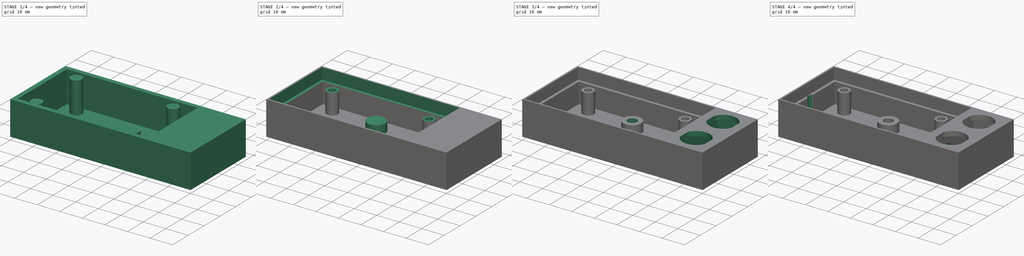
[diagram: build sequence overview — one tinted view per stage of 4, left to right]
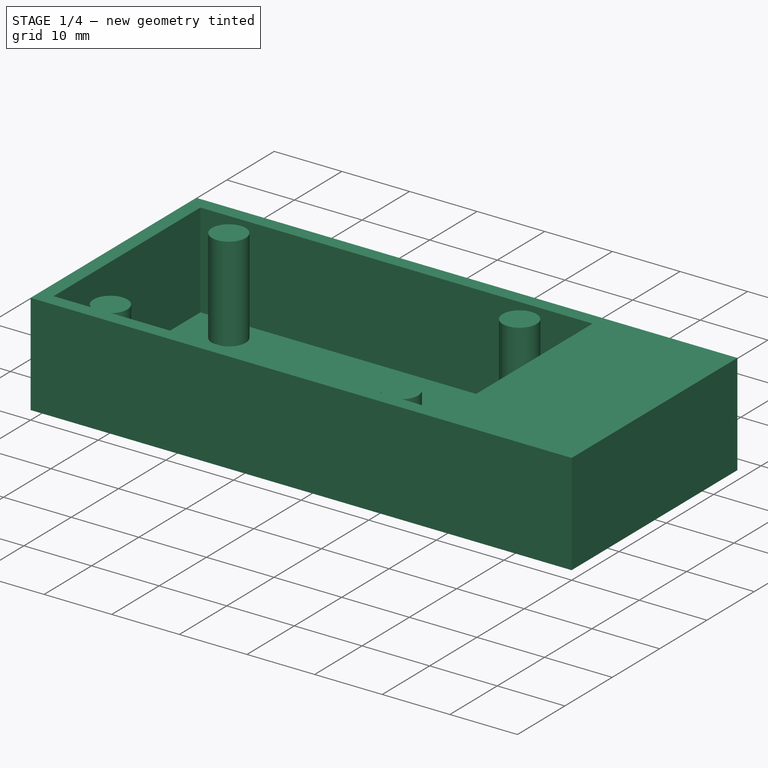
[diagram: stage 1 of 4 — iso view after this stage's code; geometry added in this stage tinted green]
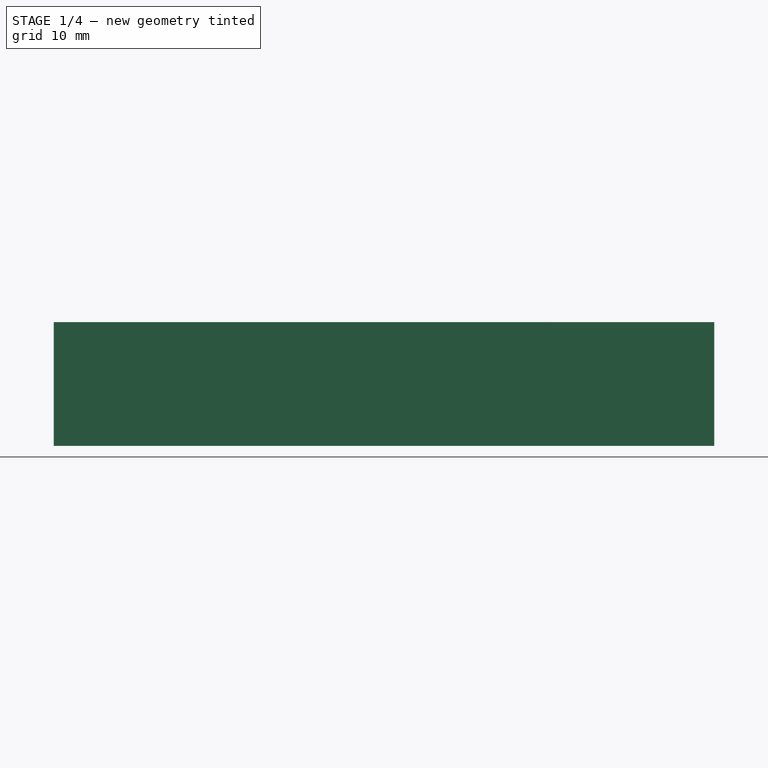
[diagram: stage 1 of 4 — front view after this stage's code; geometry added in this stage tinted green]
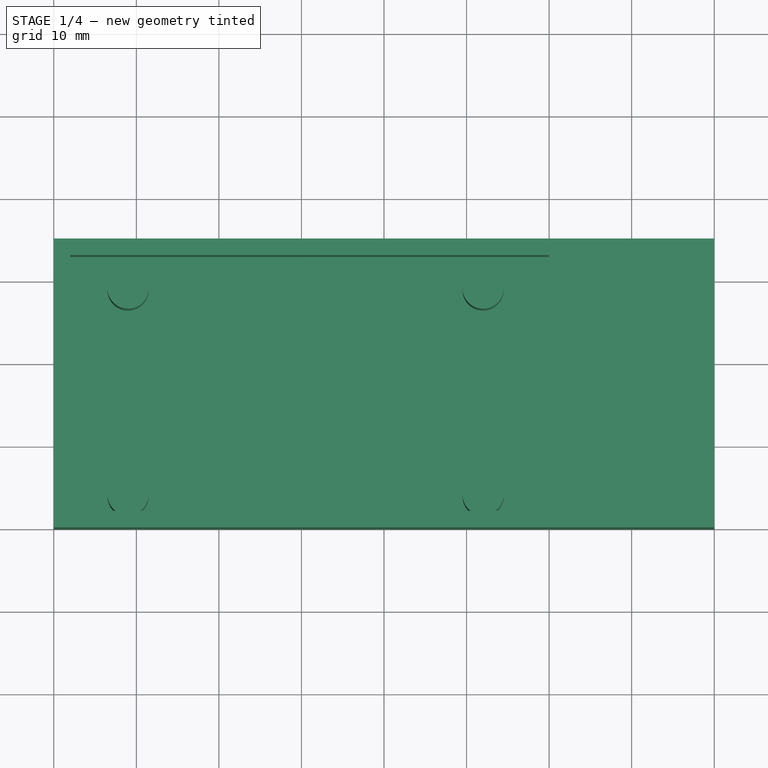
[diagram: stage 1 of 4 — top view after this stage's code; geometry added in this stage tinted green]
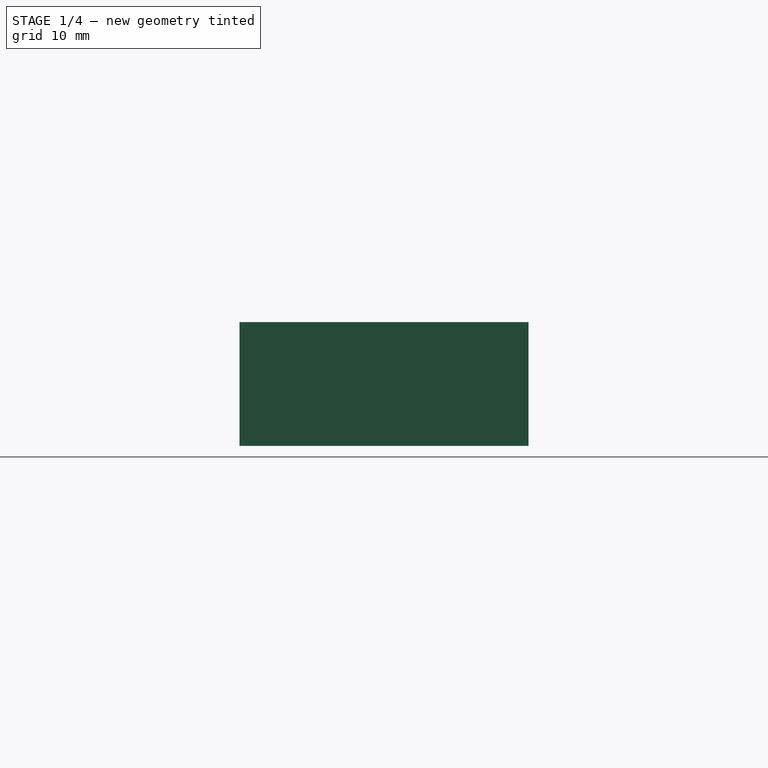
[diagram: stage 1 of 4 — right view after this stage's code; geometry added in this stage tinted green]
FCSTD DOCUMENT  (FreeCAD 0.21R33694 (Git))
Label: continuity-tester
License: All rights reserved
LicenseURL: http://en.wikipedia.org/wiki/All_rights_reserved
objects: Sketcher::SketchObject×10, PartDesign::Pocket×8, PartDesign::Pad×2, PartDesign::Body×1
note: 31 computed .brp shape members not serialized (recipe doc carries the construction recipe); baked Part::Feature solids carry a one-line shape summary decoded from their .brp

FEATURE [Sketcher::SketchObject] Sketch
  FullyConstrained = true
  MapMode = 5
  Support = -> [XY_Plane]
  sketch-geometry (4):
    g0: LineSegment StartX=0 StartY=0 StartZ=0 EndX=80 EndY=0 EndZ=0
    g1: LineSegment StartX=80 StartY=0 StartZ=0 EndX=80 EndY=35 EndZ=0
    g2: LineSegment StartX=80 StartY=35 StartZ=0 EndX=0 EndY=35 EndZ=0
    g3: LineSegment StartX=0 StartY=35 StartZ=0 EndX=0 EndY=0 EndZ=0
  constraints (11):
    c: Coincident(g0,g1)
    c: Coincident(g1,g2)
    c: Coincident(g2,g3)
    c: Coincident(g3,g0)
    c: Horizontal(g0)
    c: Horizontal(g2)
    c: Vertical(g1)
    c: Vertical(g3)
    c: Coincident(g0,g-1)
    c: DistanceY(g1,g1) = 35
    c: DistanceX(g0,g0) = 80
FEATURE [PartDesign::Pad] Pad
  Direction = (0,0,1)
  Length = 15
  Length2 = 10
  Profile = -> Sketch
  ReferenceAxis = -> Sketch [N_Axis]
  Type = 0
FEATURE [Sketcher::SketchObject] Sketch001
  ExternalGeometry = -> [Pad]
  FullyConstrained = true
  MapMode = 5
  Placement = pos=(0,0,15) rot=(0,0,1;0rad)
  Support = -> [Pad]
  sketch-geometry (21):
    g0: LineSegment StartX=2 StartY=33 StartZ=0 EndX=60 EndY=33 EndZ=0
    g1: LineSegment StartX=60 StartY=33 StartZ=0 EndX=60 EndY=2 EndZ=0
    g2: LineSegment StartX=60 StartY=2 StartZ=0 EndX=2 EndY=2 EndZ=0
    g3: LineSegment StartX=2 StartY=2 StartZ=0 EndX=2 EndY=33 EndZ=0
    g4: LineSegment StartX=9 StartY=29 StartZ=0 EndX=52 EndY=29 EndZ=0
    g5: LineSegment StartX=52 StartY=29 StartZ=0 EndX=52 EndY=4 EndZ=0
    g6: LineSegment StartX=52 StartY=4 StartZ=0 EndX=9 EndY=4 EndZ=0
    g7: LineSegment StartX=9 StartY=4 StartZ=0 EndX=9 EndY=29 EndZ=0
    g8: Circle CenterX=9 CenterY=29 CenterZ=0 NormalX=0 NormalY=0 NormalZ=1 AngleXU=0 Radius=2.5
    g9: Circle CenterX=52 CenterY=29 CenterZ=0 NormalX=0 NormalY=0 NormalZ=1 AngleXU=0 Radius=2.5
    g10: Circle CenterX=52 CenterY=4 CenterZ=0 NormalX=0 NormalY=0 NormalZ=1 AngleXU=0 Radius=2.5
    g11: Circle CenterX=9 CenterY=4 CenterZ=0 NormalX=0 NormalY=0 NormalZ=1 AngleXU=0 Radius=2.5
    g12: GeomPoint X=7.5 Y=2 Z=0
    g13: GeomPoint X=10.5 Y=2 Z=0
    g14: GeomPoint X=50.5 Y=2 Z=0
    g15: GeomPoint X=53.5 Y=2 Z=0
    g16: ArcOfCircle CenterX=9 CenterY=4 CenterZ=0 NormalX=0 NormalY=0 NormalZ=1 AngleXU=0 Radius=2.5 StartAngle=5.35589 EndAngle=10.3521
    g17: ArcOfCircle CenterX=52 CenterY=4 CenterZ=0 NormalX=0 NormalY=0 NormalZ=1 AngleXU=0 Radius=2.5 StartAngle=5.35589 EndAngle=10.3521
    g18: LineSegment StartX=2 StartY=2 StartZ=0 EndX=7.5 EndY=2 EndZ=0
    g19: LineSegment StartX=10.5 StartY=2 StartZ=0 EndX=50.5 EndY=2 EndZ=0
    g20: LineSegment StartX=53.5 StartY=2 StartZ=0 EndX=60 EndY=2 EndZ=0
  constraints (50):
    c: Coincident(g0,g1)
    c: Coincident(g1,g2)
    c: Coincident(g2,g3)
    c: Coincident(g3,g0)
    c: Horizontal(g0)
    c: Horizontal(g2)
    c: Vertical(g1)
    c: Vertical(g3)
    c: Coincident(g4,g5)
    c: Coincident(g5,g6)
    c: Coincident(g6,g7)
    c: Coincident(g7,g4)
    c: Horizontal(g4)
    c: Horizontal(g6)
    c: Vertical(g5)
    c: Vertical(g7)
    c: DistanceY(g3,g3) = 31
    c: DistanceX(g2,g2) = 58
    c: DistanceY(g-4,g2) = 2
    c: DistanceX(g-4,g2) = 2
    c: DistanceX(g6,g6) = 43
    c: DistanceY(g7,g7) = 25
    c: Coincident(g8,g4)
    c: Coincident(g9,g4)
    c: Coincident(g10,g5)
    c: Coincident(g11,g6)
    c: Equal(g11,g8)
    c: Equal(g8,g9)
    c: Equal(g9,g10)
    c: Diameter(g9) = 5
    c: DistanceX(g0,g8) = 7
    c: DistanceY(g8,g0) = 4
    c: PointOnObject(g12,g11)
    c: PointOnObject(g14,g10)
    c: PointOnObject(g13,g2)
    c: PointOnObject(g15,g2)
    c: Coincident(g16,g6)
    c: Coincident(g16,g13)
    c: Coincident(g16,g12)
    c: Coincident(g17,g5)
    c: Coincident(g17,g15)
    c: Coincident(g17,g14)
    c: PointOnObject(g16,g2)
    c: PointOnObject(g17,g2)
    c: Coincident(g18,g3)
    c: Coincident(g18,g16)
    c: Coincident(g19,g16)
    c: Coincident(g19,g17)
    c: Coincident(g20,g17)
    c: Coincident(g20,g1)
FEATURE [PartDesign::Pocket] Pocket  label="PCB bottom"
  BaseFeature = -> Pad
  Direction = (0,0,-1)
  Length = 14
  Length2 = 5
  Profile = -> Sketch001
  ReferenceAxis = -> Sketch001 [N_Axis]
  Type = 0
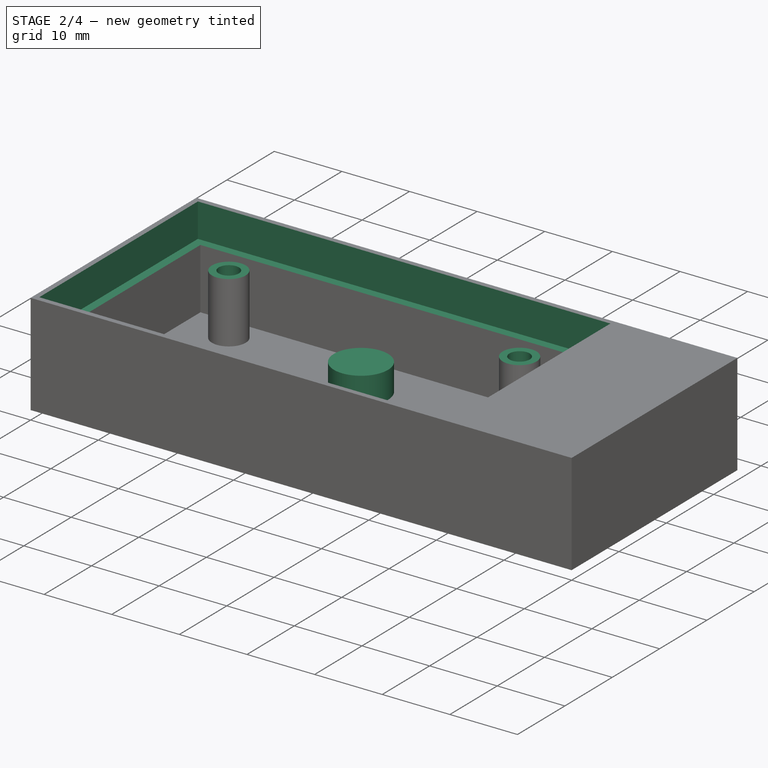
[diagram: stage 2 of 4 — iso view after this stage's code; geometry added in this stage tinted green]
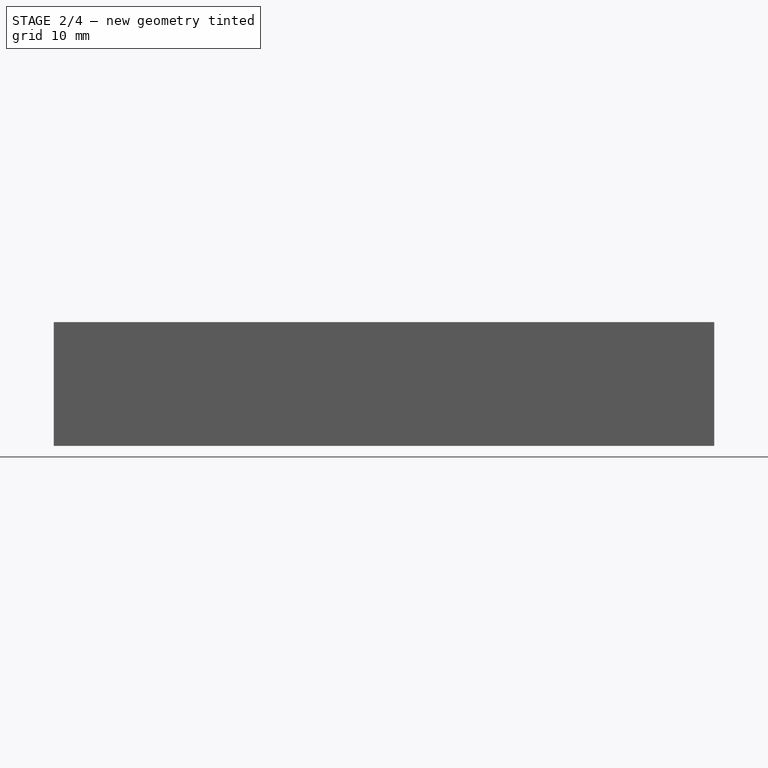
[diagram: stage 2 of 4 — front view after this stage's code; geometry added in this stage tinted green]
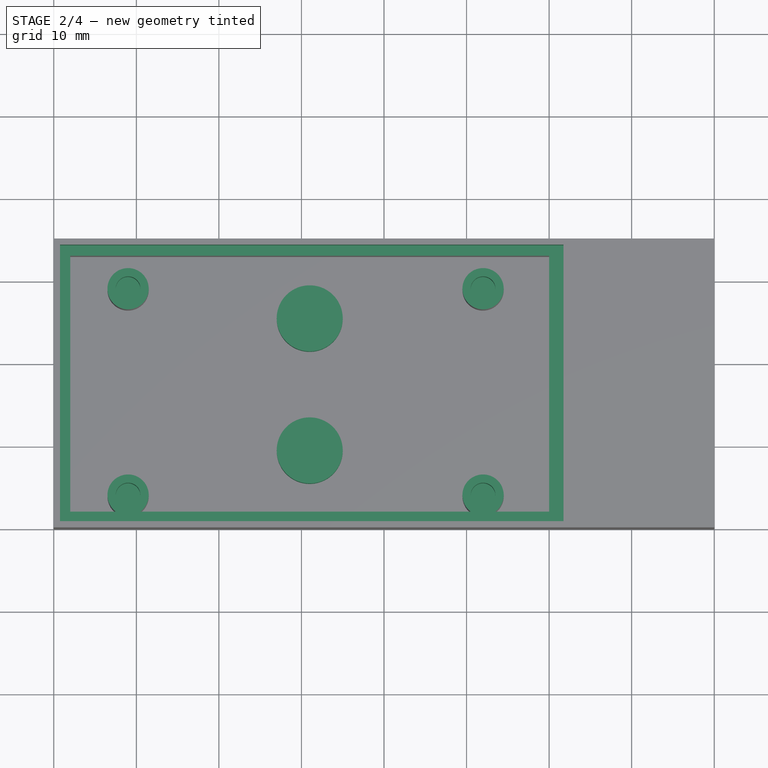
[diagram: stage 2 of 4 — top view after this stage's code; geometry added in this stage tinted green]
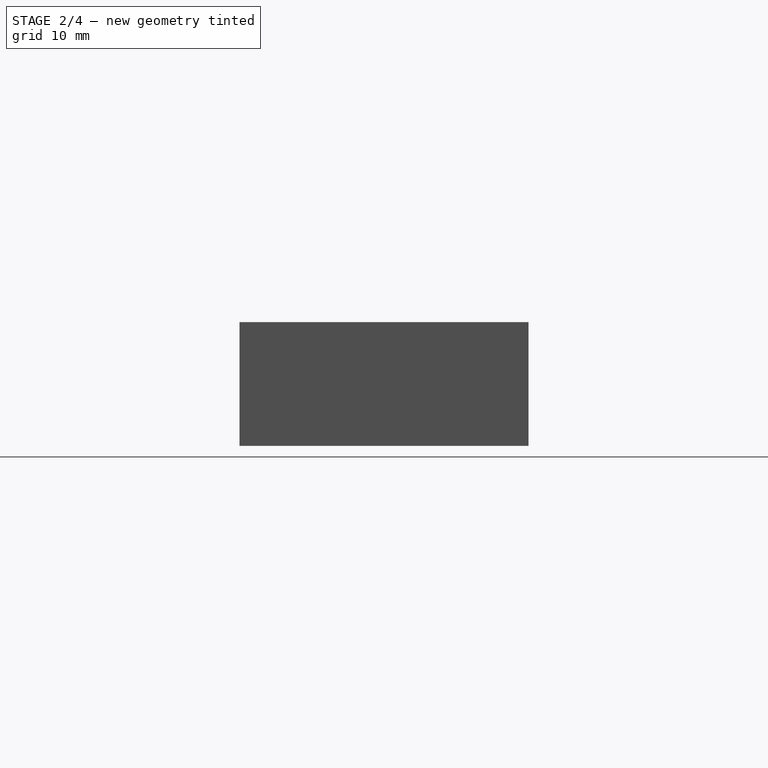
[diagram: stage 2 of 4 — right view after this stage's code; geometry added in this stage tinted green]
FEATURE [Sketcher::SketchObject] Sketch002
  ExternalGeometry = -> [Pocket]
  FullyConstrained = true
  MapMode = 5
  Placement = pos=(0,0,15) rot=(0,0,1;0rad)
  Support = -> [Pocket]
  sketch-geometry (7):
    g0: LineSegment StartX=0.75 StartY=34.25 StartZ=0 EndX=61.75 EndY=34.25 EndZ=0
    g1: LineSegment StartX=61.75 StartY=34.25 StartZ=0 EndX=61.75 EndY=0.75 EndZ=0
    g2: LineSegment StartX=61.75 StartY=0.75 StartZ=0 EndX=0.75 EndY=0.75 EndZ=0
    g3: LineSegment StartX=0.75 StartY=0.75 StartZ=0 EndX=0.75 EndY=34.25 EndZ=0
    g4: LineSegment StartX=0.75 StartY=0.75 StartZ=0 EndX=0.75 EndY=0 EndZ=0
    g5: LineSegment StartX=0.75 StartY=0.75 StartZ=0 EndX=0 EndY=0.75 EndZ=0
    g6: LineSegment StartX=0.75 StartY=34.25 StartZ=0 EndX=0.75 EndY=35 EndZ=0
  constraints (21):
    c: Coincident(g0,g1)
    c: Coincident(g1,g2)
    c: Coincident(g2,g3)
    c: Coincident(g3,g0)
    c: Horizontal(g0)
    c: Horizontal(g2)
    c: Vertical(g1)
    c: Vertical(g3)
    c: DistanceX(g2,g2) = 61
    c: DistanceY(g3,g3) = 33.5
    c: Coincident(g4,g2)
    c: PointOnObject(g4,g-1)
    c: Vertical(g4)
    c: Coincident(g5,g2)
    c: Horizontal(g5)
    c: Coincident(g6,g0)
    c: PointOnObject(g6,g-3)
    c: Vertical(g6)
    c: Equal(g6,g4)
    c: Equal(g4,g5)
    c: PointOnObject(g5,g-2)
FEATURE [PartDesign::Pocket] Pocket001  label="PCB top"
  BaseFeature = -> Pocket
  Direction = (0,0,-1)
  Length = 5
  Length2 = 5
  Profile = -> Sketch002
  ReferenceAxis = -> Sketch002 [N_Axis]
  Type = 0
FEATURE [Sketcher::SketchObject] Sketch003
  ExternalGeometry = -> [Pocket001]
  FullyConstrained = true
  MapMode = 5
  Placement = pos=(0,0,10) rot=(0,0,1;0rad)
  Support = -> [Pocket001]
  sketch-geometry (4):
    g0: Circle CenterX=9 CenterY=29 CenterZ=0 NormalX=0 NormalY=0 NormalZ=1 AngleXU=0 Radius=1.5
    g1: Circle CenterX=9 CenterY=4 CenterZ=0 NormalX=0 NormalY=0 NormalZ=1 AngleXU=0 Radius=1.5
    g2: Circle CenterX=52 CenterY=29 CenterZ=0 NormalX=0 NormalY=0 NormalZ=1 AngleXU=0 Radius=1.5
    g3: Circle CenterX=52 CenterY=4 CenterZ=0 NormalX=0 NormalY=0 NormalZ=1 AngleXU=0 Radius=1.5
  constraints (8):
    c: Coincident(g0,g-4)
    c: Coincident(g1,g-5)
    c: Coincident(g2,g-3)
    c: Coincident(g3,g-6)
    c: Equal(g1,g0)
    c: Equal(g0,g2)
    c: Equal(g2,g3)
    c: Diameter(g2) = 3
FEATURE [PartDesign::Pocket] Pocket002  label="PCB inserts"
  BaseFeature = -> Pocket001
  Direction = (0,0,-1)
  Length = 5
  Length2 = 5
  Profile = -> Sketch003
  ReferenceAxis = -> Sketch003 [N_Axis]
  Type = 0
FEATURE [Sketcher::SketchObject] Sketch004
  ExternalGeometry = -> [Pocket002]
  FullyConstrained = true
  MapMode = 5
  Placement = pos=(0,0,0) rot=(1,0,0;3.14159rad)
  Support = -> [Pocket002]
  sketch-geometry (5):
    g0: LineSegment StartX=31 StartY=-9.5 StartZ=0 EndX=31 EndY=-25.5 EndZ=0
    g1: LineSegment StartX=31 StartY=-9.5 StartZ=0 EndX=31 EndY=0 EndZ=0
    g2: LineSegment StartX=31 StartY=-25.5 StartZ=0 EndX=31 EndY=-35 EndZ=0
    g3: Circle CenterX=31 CenterY=-9.5 CenterZ=0 NormalX=0 NormalY=0 NormalZ=1 AngleXU=0 Radius=4
    g4: Circle CenterX=31 CenterY=-25.5 CenterZ=0 NormalX=0 NormalY=0 NormalZ=1 AngleXU=0 Radius=4
  constraints (14):
    c: Vertical(g0)
    c: DistanceY(g0,g0) = 16
    c: Coincident(g1,g0)
    c: PointOnObject(g1,g-4)
    c: Vertical(g1)
    c: Coincident(g2,g0)
    c: PointOnObject(g2,g-3)
    c: Vertical(g2)
    c: Equal(g2,g1)
    c: DistanceX(g-4,g1) = 31
    c: Coincident(g3,g0)
    c: Coincident(g4,g0)
    c: Equal(g3,g4)
    c: Diameter(g3) = 8
FEATURE [PartDesign::Pad] Pad001  label="Battery inserts extern"
  BaseFeature = -> Pocket002
  Direction = (0,0,-1)
  Length = 5
  Length2 = 10
  Profile = -> Sketch004
  ReferenceAxis = -> Sketch004 [N_Axis]
  Reversed = true
  Type = 0
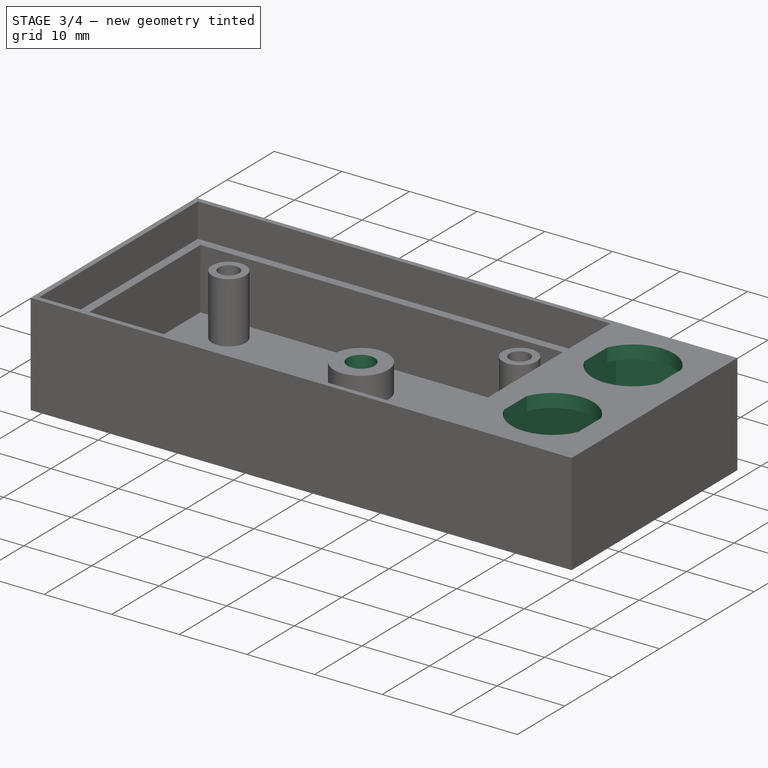
[diagram: stage 3 of 4 — iso view after this stage's code; geometry added in this stage tinted green]
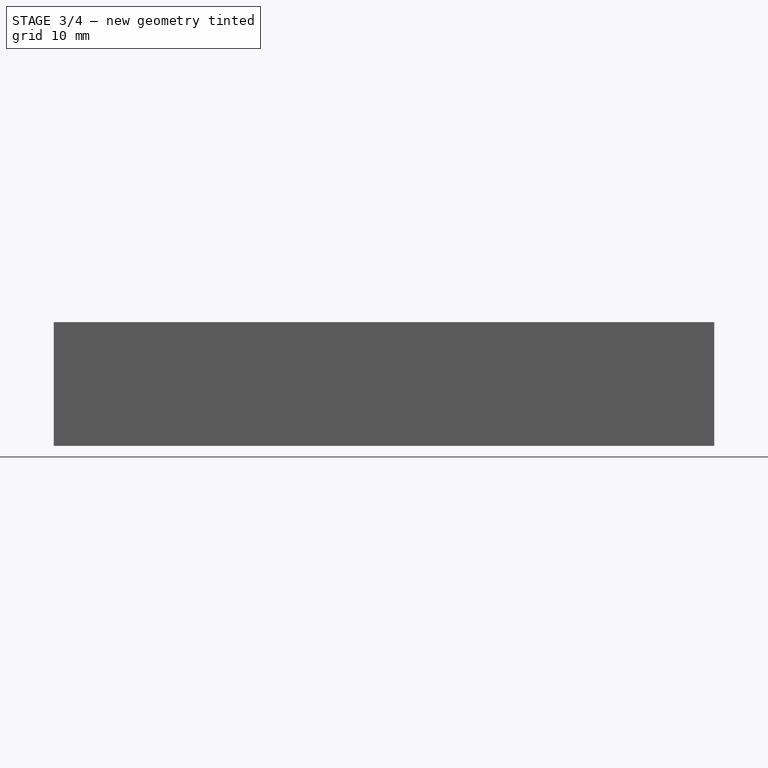
[diagram: stage 3 of 4 — front view after this stage's code; geometry added in this stage tinted green]
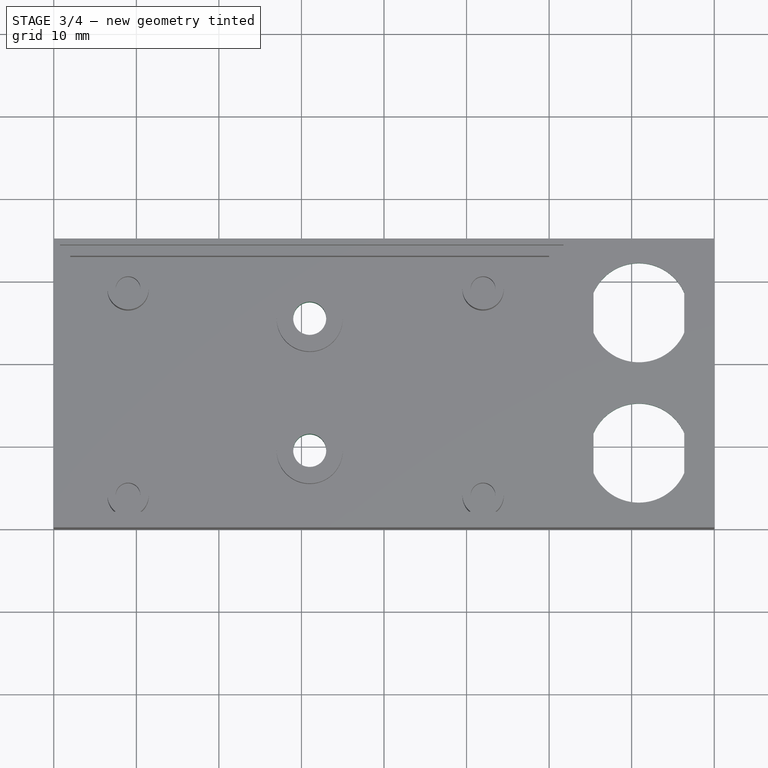
[diagram: stage 3 of 4 — top view after this stage's code; geometry added in this stage tinted green]
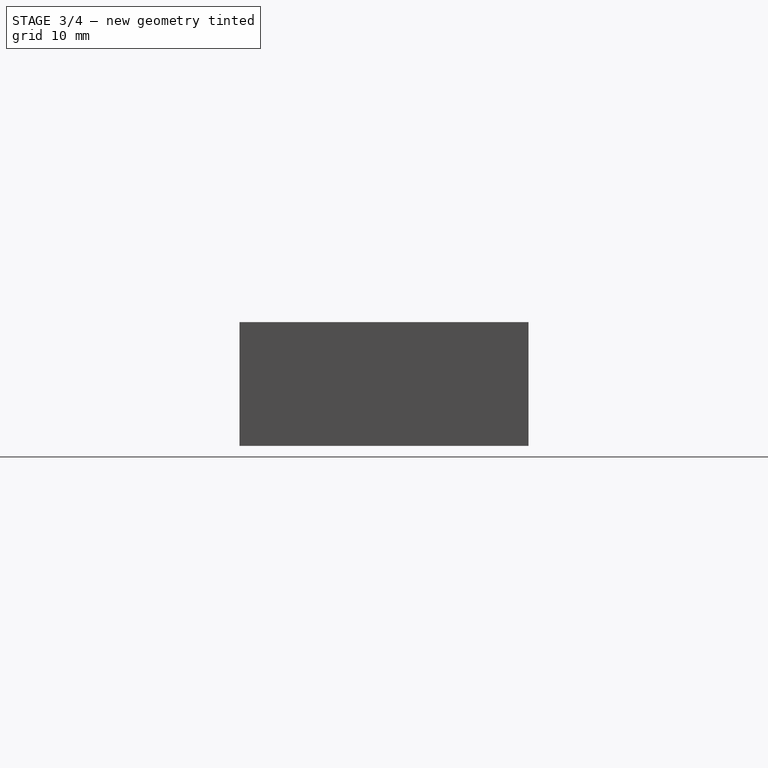
[diagram: stage 3 of 4 — right view after this stage's code; geometry added in this stage tinted green]
FEATURE [Sketcher::SketchObject] Sketch005
  ExternalGeometry = -> [Pad001]
  FullyConstrained = true
  MapMode = 5
  Placement = pos=(0,0,0) rot=(1,0,0;3.14159rad)
  Support = -> [Pad001]
  sketch-geometry (2):
    g0: Circle CenterX=31 CenterY=-9.5 CenterZ=0 NormalX=0 NormalY=0 NormalZ=1 AngleXU=0 Radius=2
    g1: Circle CenterX=31 CenterY=-25.5 CenterZ=0 NormalX=0 NormalY=0 NormalZ=1 AngleXU=0 Radius=2
  constraints (4):
    c: Coincident(g0,g-4)
    c: Coincident(g1,g-3)
    c: Equal(g1,g0)
    c: Diameter(g0) = 4
FEATURE [PartDesign::Pocket] Pocket003  label="Battery inserts"
  BaseFeature = -> Pad001
  Direction = (0,0,1)
  Length = 5
  Length2 = 5
  Profile = -> Sketch005
  ReferenceAxis = -> Sketch005 [N_Axis]
  Type = 0
FEATURE [Sketcher::SketchObject] Sketch006
  ExternalGeometry = -> [Pocket003]
  FullyConstrained = true
  MapMode = 5
  Placement = pos=(0,0,0) rot=(1,0,0;3.14159rad)
  Support = -> [Pocket003]
  sketch-geometry (4):
    g0: LineSegment StartX=62.75 StartY=-1 StartZ=0 EndX=79 EndY=-1 EndZ=0
    g1: LineSegment StartX=79 StartY=-1 StartZ=0 EndX=79 EndY=-34 EndZ=0
    g2: LineSegment StartX=79 StartY=-34 StartZ=0 EndX=62.75 EndY=-34 EndZ=0
    g3: LineSegment StartX=62.75 StartY=-34 StartZ=0 EndX=62.75 EndY=-1 EndZ=0
  constraints (12):
    c: Coincident(g0,g1)
    c: Coincident(g1,g2)
    c: Coincident(g2,g3)
    c: Coincident(g3,g0)
    c: Horizontal(g0)
    c: Horizontal(g2)
    c: Vertical(g1)
    c: Vertical(g3)
    c: DistanceX(g1,g-6) = 1
    c: DistanceY(g-6,g1) = 1
    c: DistanceY(g0,g-5) = 1
    c: DistanceX(g-3,g0) = 1
FEATURE [PartDesign::Pocket] Pocket004  label="Leads pocket"
  BaseFeature = -> Pocket003
  Direction = (0,0,1)
  Length = 13
  Length2 = 5
  Profile = -> Sketch006
  ReferenceAxis = -> Sketch006 [N_Axis]
  Type = 0
FEATURE [Sketcher::SketchObject] Sketch007
  ExternalGeometry = -> [Pocket004]
  FullyConstrained = true
  MapMode = 5
  Placement = pos=(0,0,15) rot=(0,0,1;0rad)
  Support = -> [Pocket004]
  sketch-geometry (15):
    g0: LineSegment StartX=70.875 StartY=26 StartZ=0 EndX=70.875 EndY=9 EndZ=0
    g1: LineSegment StartX=70.875 StartY=26 StartZ=0 EndX=70.875 EndY=35 EndZ=0
    g2: LineSegment StartX=70.875 StartY=9 StartZ=0 EndX=70.875 EndY=0 EndZ=0
    g3: LineSegment StartX=70.875 StartY=26 StartZ=0 EndX=80 EndY=26 EndZ=0
    g4: LineSegment StartX=70.875 StartY=26 StartZ=0 EndX=61.75 EndY=26 EndZ=0
    g5: Circle CenterX=70.875 CenterY=26 CenterZ=0 NormalX=0 NormalY=0 NormalZ=1 AngleXU=0 Radius=6
    g6: Circle CenterX=70.875 CenterY=9 CenterZ=0 NormalX=0 NormalY=0 NormalZ=1 AngleXU=0 Radius=6
    g7: LineSegment StartX=65.375 StartY=28.3979 StartZ=0 EndX=65.375 EndY=23.6021 EndZ=0
    g8: LineSegment StartX=76.375 StartY=28.3979 StartZ=0 EndX=76.375 EndY=23.6021 EndZ=0
    g9: LineSegment StartX=65.375 StartY=11.3979 StartZ=0 EndX=65.375 EndY=6.60208 EndZ=0
    g10: LineSegment StartX=76.375 StartY=11.3979 StartZ=0 EndX=76.375 EndY=6.60208 EndZ=0
    g11: ArcOfCircle CenterX=70.875 CenterY=26 CenterZ=0 NormalX=0 NormalY=0 NormalZ=1 AngleXU=0 Radius=6 StartAngle=0.411138 EndAngle=2.73045
    g12: ArcOfCircle CenterX=70.875 CenterY=26 CenterZ=0 NormalX=0 NormalY=0 NormalZ=1 AngleXU=0 Radius=6 StartAngle=3.55273 EndAngle=5.87205
    g13: ArcOfCircle CenterX=70.875 CenterY=9 CenterZ=0 NormalX=0 NormalY=0 NormalZ=1 AngleXU=0 Radius=6 StartAngle=0.411138 EndAngle=2.73045
    g14: ArcOfCircle CenterX=70.875 CenterY=9 CenterZ=0 NormalX=0 NormalY=0 NormalZ=1 AngleXU=0 Radius=6 StartAngle=3.55273 EndAngle=5.87205
  constraints (44):
    c: Vertical(g0)
    c: Coincident(g1,g0)
    c: PointOnObject(g1,g-3)
    c: Vertical(g1)
    c: Coincident(g2,g0)
    c: PointOnObject(g2,g-6)
    c: Vertical(g2)
    c: Equal(g2,g1)
    c: Coincident(g3,g0)
    c: PointOnObject(g3,g-4)
    c: Horizontal(g3)
    c: Coincident(g4,g0)
    c: PointOnObject(g4,g-5)
    c: Horizontal(g4)
    c: Equal(g4,g3)
    c: Coincident(g5,g0)
    c: Coincident(g6,g0)
    c: Equal(g6,g5)
    c: Diameter(g6) = 12
    c: DistanceY(g0,g0) = 17
    c: PointOnObject(g7,g5)
    c: PointOnObject(g7,g5)
    c: Vertical(g7)
    c: Vertical(g8)
    c: Equal(g7,g8)
    c: PointOnObject(g9,g6)
    c: PointOnObject(g9,g6)
    c: Vertical(g9)
    c: Vertical(g10)
    c: Equal(g9,g10)
    c: Coincident(g11,g0)
    c: Coincident(g11,g7)
    c: Coincident(g11,g8)
    c: Coincident(g12,g11)
    c: Coincident(g12,g7)
    c: Coincident(g12,g8)
    c: Coincident(g13,g0)
    c: Coincident(g13,g9)
    c: Coincident(g13,g10)
    c: Coincident(g14,g13)
    c: Coincident(g14,g9)
    c: Coincident(g14,g10)
    c: DistanceX(g7,g8) = 11
    c: DistanceX(g9,g10) = 11
FEATURE [PartDesign::Pocket] Pocket005  label="Leads holes"
  BaseFeature = -> Pocket004
  Direction = (0,0,-1)
  Length = 5
  Length2 = 5
  Profile = -> Sketch007
  ReferenceAxis = -> Sketch007 [N_Axis]
  Type = 1
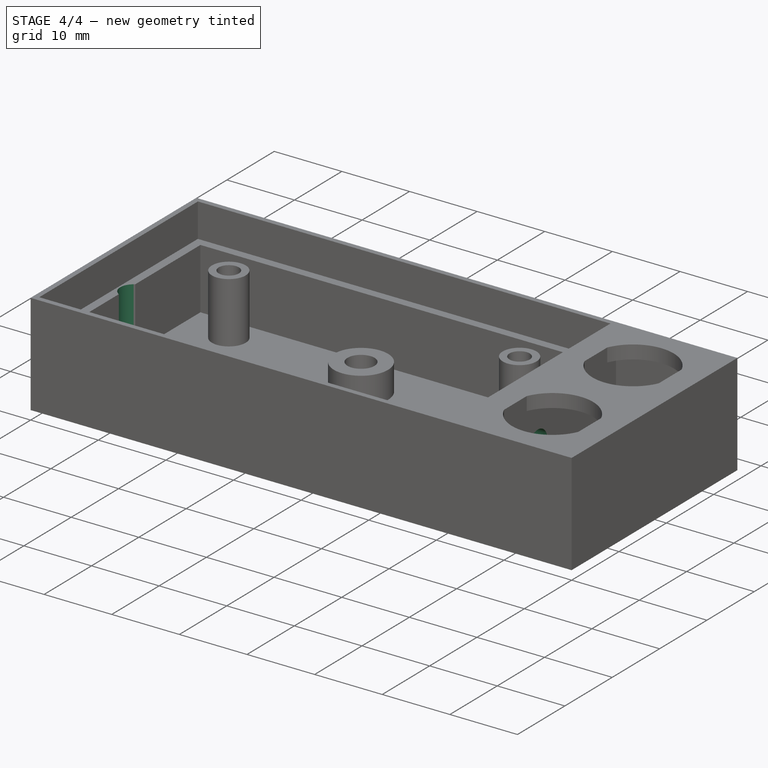
[diagram: stage 4 of 4 — iso view after this stage's code; geometry added in this stage tinted green]
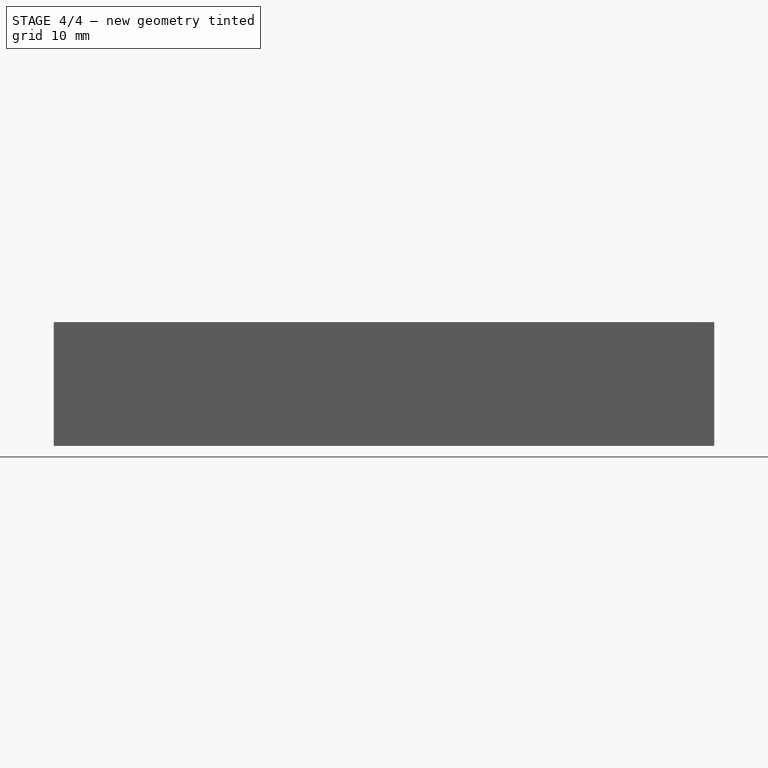
[diagram: stage 4 of 4 — front view after this stage's code; geometry added in this stage tinted green]
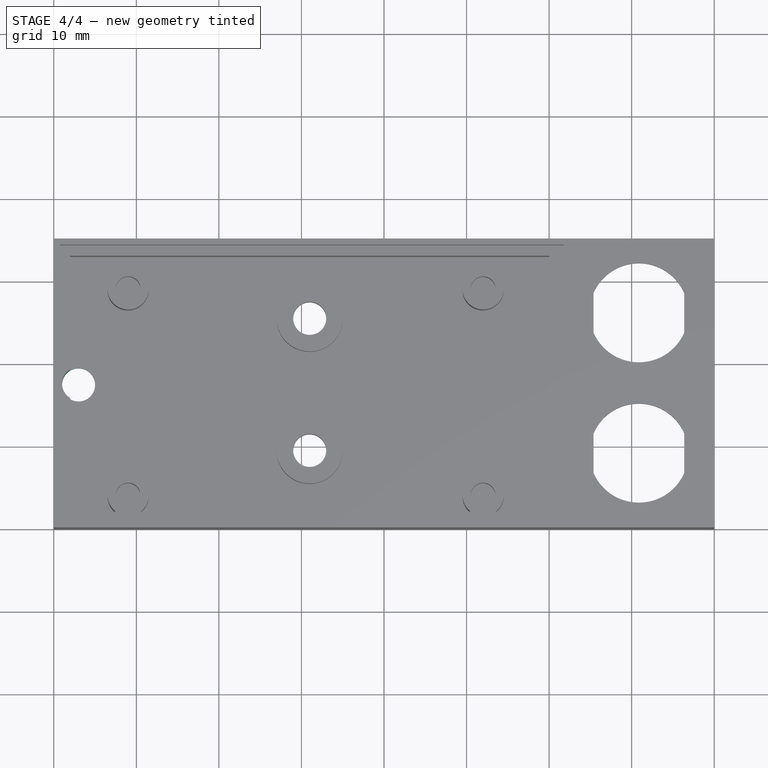
[diagram: stage 4 of 4 — top view after this stage's code; geometry added in this stage tinted green]
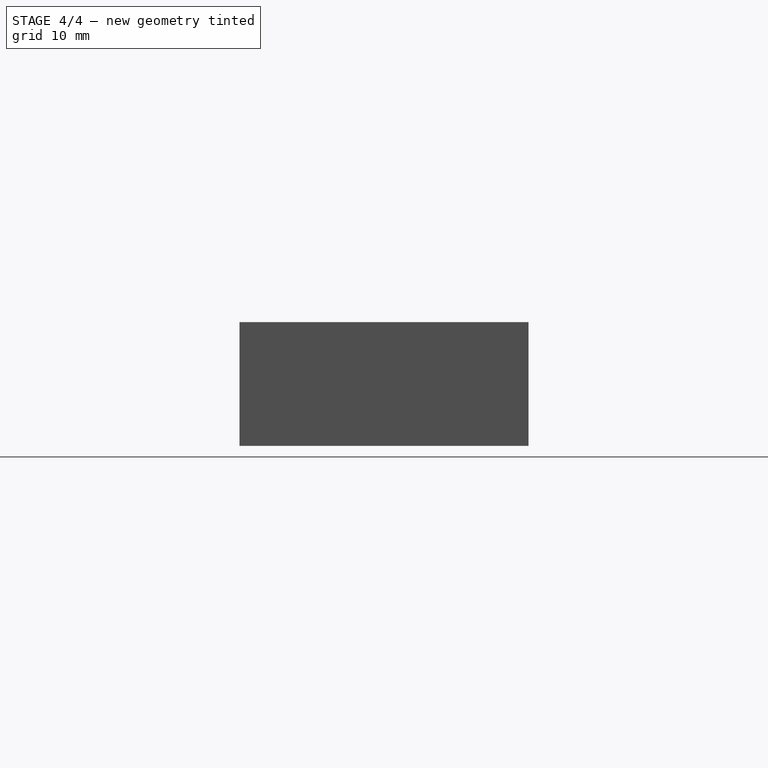
[diagram: stage 4 of 4 — right view after this stage's code; geometry added in this stage tinted green]
FEATURE [Sketcher::SketchObject] Sketch008
  ExternalGeometry = -> [Pocket005]
  FullyConstrained = true
  MapMode = 5
  Placement = pos=(0,0,5) rot=(0,0,1;0rad)
  Support = -> [Pocket005]
  sketch-geometry (3):
    g0: Circle CenterX=3 CenterY=17.5 CenterZ=0 NormalX=0 NormalY=0 NormalZ=1 AngleXU=0 Radius=2
    g1: LineSegment StartX=3 StartY=33 StartZ=0 EndX=3 EndY=17.5 EndZ=0
    g2: LineSegment StartX=3 StartY=17.5 StartZ=0 EndX=3 EndY=2 EndZ=0
  constraints (9):
    c: Diameter(g0) = 4
    c: PointOnObject(g1,g-4)
    c: Coincident(g1,g0)
    c: Coincident(g2,g0)
    c: PointOnObject(g2,g-5)
    c: Vertical(g2)
    c: Vertical(g1)
    c: Equal(g1,g2)
    c: DistanceX(g-7,g0) = 3
FEATURE [PartDesign::Pocket] Pocket006  label="Battery wires"
  BaseFeature = -> Pocket005
  Direction = (0,0,-1)
  Length = 5
  Length2 = 5
  Midplane = true
  Profile = -> Sketch008
  ReferenceAxis = -> Sketch008 [N_Axis]
  Type = 1
FEATURE [Sketcher::SketchObject] Sketch009
  ExternalGeometry = -> [Pocket006]
  FullyConstrained = true
  MapMode = 5
  Placement = pos=(60,0,0) rot=(0.57735,-0.57735,-0.57735;2.0944rad)
  Support = -> [Pocket006]
  sketch-geometry (3):
    g0: Circle CenterX=-17.5 CenterY=5.5 CenterZ=0 NormalX=0 NormalY=0 NormalZ=1 AngleXU=0 Radius=2
    g1: LineSegment StartX=-2 StartY=10 StartZ=0 EndX=-33 EndY=1 EndZ=0
    g2: LineSegment StartX=-33 StartY=10 StartZ=0 EndX=-2 EndY=1 EndZ=0
  constraints (7):
    c: Diameter(g0) = 4
    c: Coincident(g1,g-6)
    c: Coincident(g2,g-5)
    c: Coincident(g-6,g2)
    c: Coincident(g-5,g1)
    c: PointOnObject(g0,g1)
    c: PointOnObject(g0,g2)
FEATURE [PartDesign::Pocket] Pocket007  label="Leads wires"
  BaseFeature = -> Pocket006
  Direction = (1,0,0)
  Length = 5
  Length2 = 5
  Profile = -> Sketch009
  ReferenceAxis = -> Sketch009 [N_Axis]
  Type = 2
FEATURE [PartDesign::Body] Body
  Group = -> [Sketch,Pad,Sketch001,Pocket,Sketch002,Pocket001,Sketch003,Pocket002,Sketch004,Pad001,Sketch005,Pocket003,Sketch006,Pocket004,Sketch007,Pocket005,Sketch008,Pocket006,Sketch009,Pocket007]
  Origin = -> Origin
  Tip = -> Pocket007
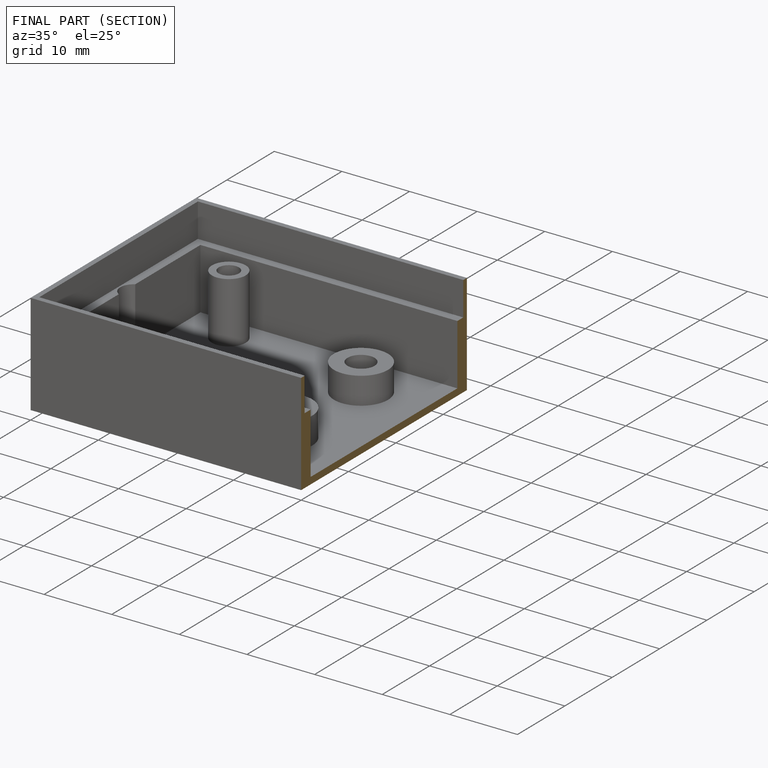
[diagram: finished part — half-section view (interior)]
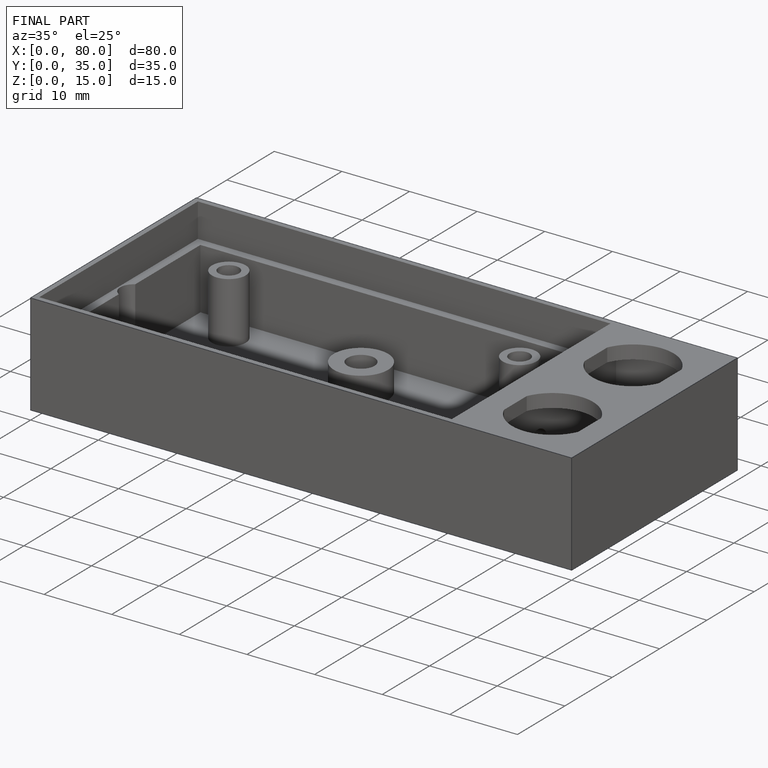
[diagram: finished part — iso view with bounding-box wireframe]
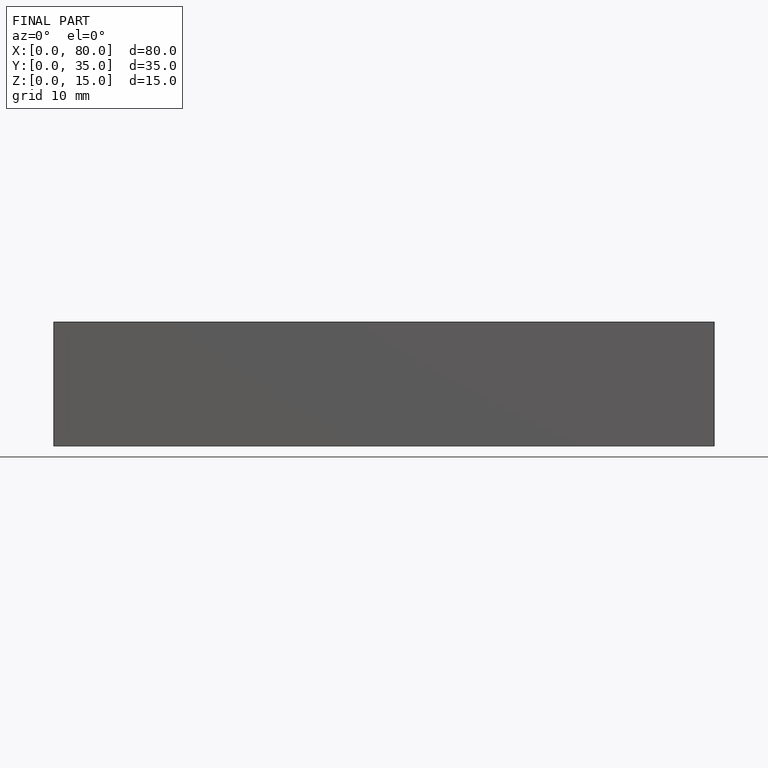
[diagram: finished part — front view with bounding-box wireframe]
